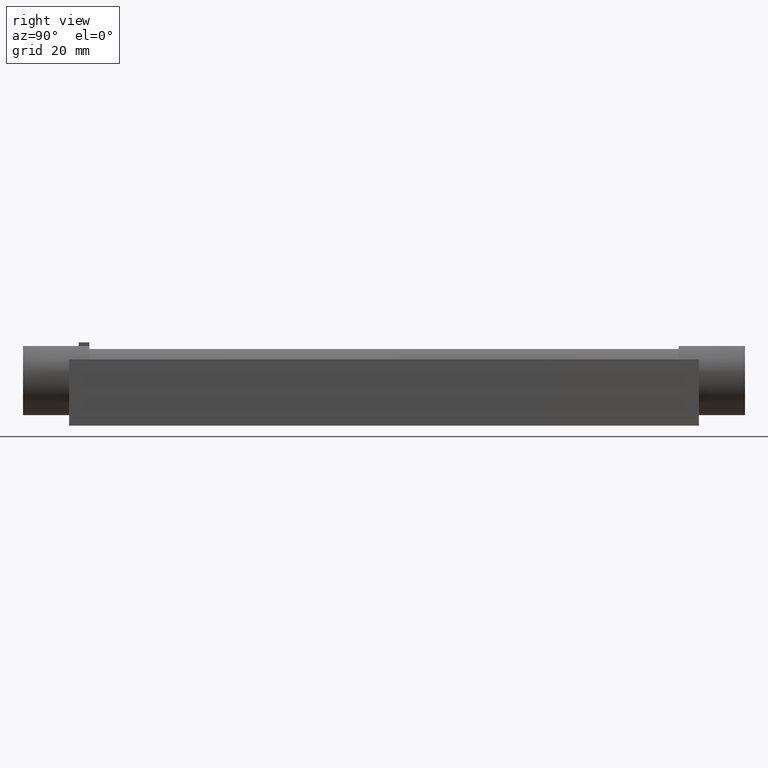
[diagram: clean part render]
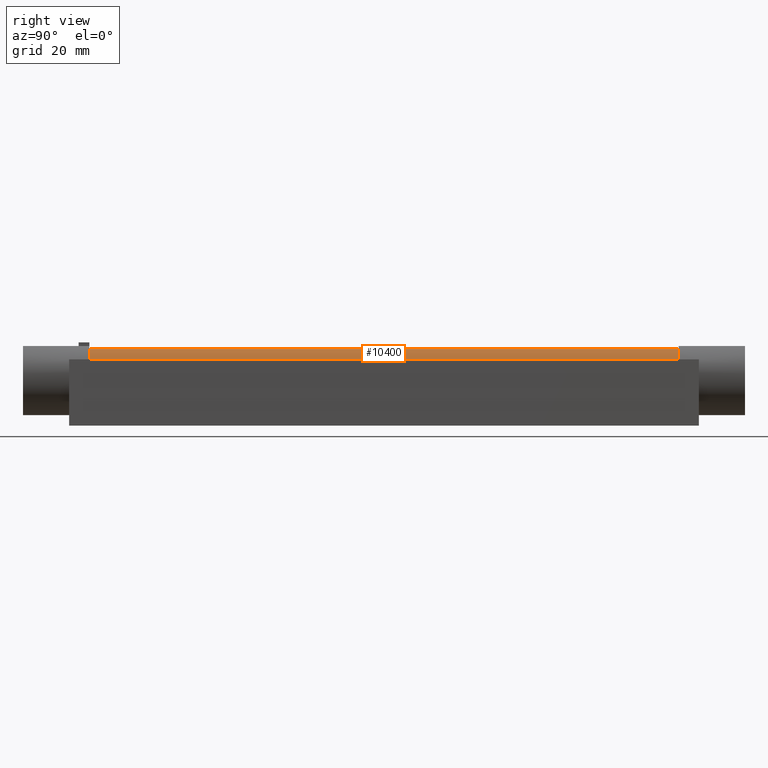
[diagram: same view with one face highlighted and labeled with its STEP entity id]
A machine part, right view. The second image highlights one B-rep face of the part: STEP entity #10400.
In plain terms, the highlighted cylindrical surface (edge-blend (fillet) strip) has radius 9.5 mm, axis along (0, -1, 0).
Its self-contained STEP definition (entity closure, byte-faithful):
#280=CARTESIAN_POINT('',(18.0000000000001,8.61684396980705,-22.));
#290=VERTEX_POINT('',#280);
#320=CARTESIAN_POINT('',(98.,8.61684396980704,-22.));
#330=DIRECTION('',(-1.,0.,0.));
#340=VECTOR('',#330,1.);
#350=LINE('',#320,#340);
#360=CARTESIAN_POINT('',(178.,8.61684396980704,-22.));
#370=VERTEX_POINT('',#360);
#380=EDGE_CURVE('',#370,#290,#350,.T.);
#6610=CARTESIAN_POINT('',(18.0000000000001,0.,-18.));
#6620=DIRECTION('',(-1.,0.,0.));
#6630=DIRECTION('',(0.,0.,1.));
#6640=AXIS2_PLACEMENT_3D('',#6610,#6620,#6630);
#6650=CIRCLE('',#6640,9.5);
#6660=CARTESIAN_POINT('',(18.0000000000001,6.63400331624879,-24.8));
#6670=VERTEX_POINT('',#6660);
#6680=EDGE_CURVE('',#290,#6670,#6650,.T.);
#8040=CARTESIAN_POINT('',(178.,0.,-18.));
#8050=DIRECTION('',(-1.,0.,0.));
#8060=DIRECTION('',(0.,0.,1.));
#8070=AXIS2_PLACEMENT_3D('',#8040,#8050,#8060);
#8080=CIRCLE('',#8070,9.5);
#8090=CARTESIAN_POINT('',(178.,6.6340033162488,-24.8));
#8100=VERTEX_POINT('',#8090);
#8110=EDGE_CURVE('',#370,#8100,#8080,.T.);
#10240=CARTESIAN_POINT('',(98.,0.,-18.));
#10250=DIRECTION('',(-1.,0.,0.));
#10260=DIRECTION('',(0.,0.,1.));
#10270=AXIS2_PLACEMENT_3D('',#10240,#10250,#10260);
#10280=CYLINDRICAL_SURFACE('',#10270,9.5);
#10290=ORIENTED_EDGE('',*,*,#6680,.F.);
#10300=CARTESIAN_POINT('',(98.,6.63400331624879,-24.8));
#10310=DIRECTION('',(-1.,0.,0.));
#10320=VECTOR('',#10310,1.);
#10330=LINE('',#10300,#10320);
#10340=EDGE_CURVE('',#8100,#6670,#10330,.T.);
#10350=ORIENTED_EDGE('',*,*,#10340,.T.);
#10360=ORIENTED_EDGE('',*,*,#8110,.T.);
#10370=ORIENTED_EDGE('',*,*,#380,.F.);
#10380=EDGE_LOOP('',(#10370,#10360,#10350,#10290));
#10390=FACE_OUTER_BOUND('',#10380,.T.);
#10400=ADVANCED_FACE('',(#10390),#10280,.T.);